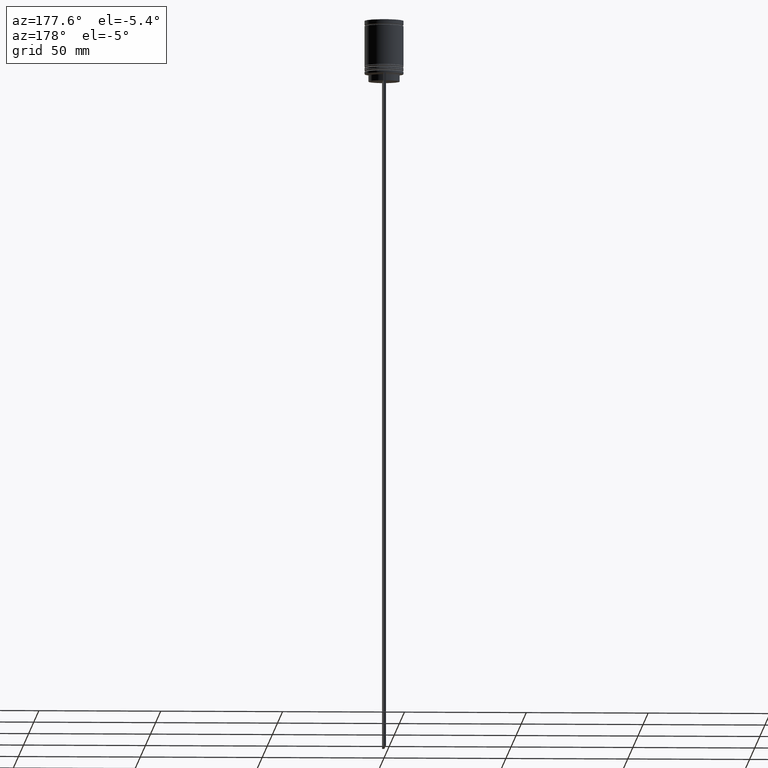
[diagram: clean part render]
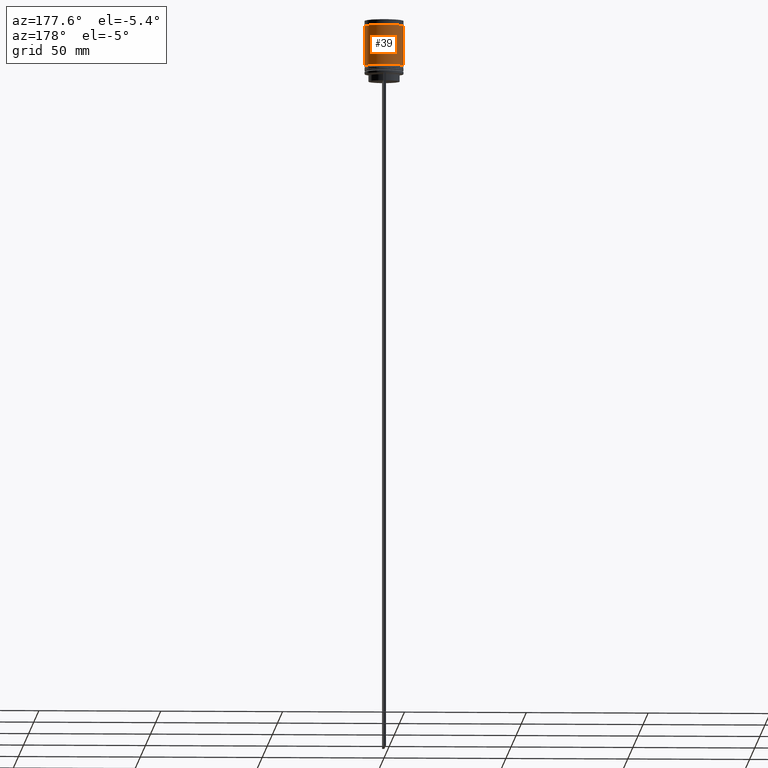
[diagram: same view with one face highlighted and labeled with its STEP entity id]
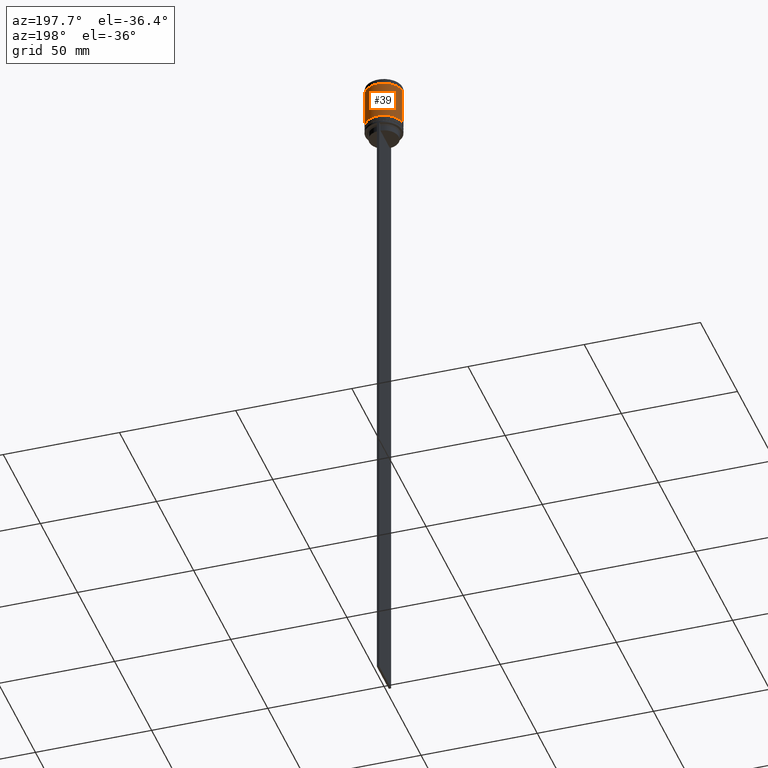
[diagram: same view with one face highlighted and labeled with its STEP entity id]
A machine part, auxiliary view. The second image highlights one B-rep face of the part: STEP entity #39.
A second angle (auxiliary view) of the same face is appended — the face is thin or edge-on in the first view.
In plain terms, the highlighted cylindrical surface (edge-blend (fillet) strip) has radius 8 mm, axis along (-0, -0, 1).
Its self-contained STEP definition (entity closure, byte-faithful):
#39 = ADVANCED_FACE ( 'NONE', ( #237 ), #1844, .T. ) ;
#41 = CARTESIAN_POINT ( 'NONE',  ( 8.000000000000001776, 0.000000000000000000, -18.50000000000000000 ) ) ;
#59 = LINE ( 'NONE', #540, #614 ) ;
#71 = CARTESIAN_POINT ( 'NONE',  ( 0.000000000000000000, 0.000000000000000000, 0.000000000000000000 ) ) ;
#104 = VERTEX_POINT ( 'NONE', #1899 ) ;
#109 = AXIS2_PLACEMENT_3D ( 'NONE', #71, #526, #1367 ) ;
#203 = VERTEX_POINT ( 'NONE', #938 ) ;
#230 = EDGE_CURVE ( 'NONE', #1109, #203, #578, .T. ) ;
#237 = FACE_OUTER_BOUND ( 'NONE', #1807, .T. ) ;
#526 = DIRECTION ( 'NONE',  ( -0.000000000000000000, -0.000000000000000000, 1.000000000000000000 ) ) ;
#540 = CARTESIAN_POINT ( 'NONE',  ( -8.000000000000000000, 9.797174393178825657E-16, 0.000000000000000000 ) ) ;
#570 = DIRECTION ( 'NONE',  ( -0.000000000000000000, -0.000000000000000000, 1.000000000000000000 ) ) ;
#578 = CIRCLE ( 'NONE', #1455, 7.999999999999996447 ) ;
#587 = CARTESIAN_POINT ( 'NONE',  ( 0.000000000000000000, 0.000000000000000000, -18.50000000000000000 ) ) ;
#614 = VECTOR ( 'NONE', #1514, 1000.000000000000000 ) ;
#629 = DIRECTION ( 'NONE',  ( -0.000000000000000000, -0.000000000000000000, 1.000000000000000000 ) ) ;
#753 = CARTESIAN_POINT ( 'NONE',  ( 7.999999999999996447, 0.000000000000000000, -2.199999999999995293 ) ) ;
#758 = AXIS2_PLACEMENT_3D ( 'NONE', #587, #1217, #937 ) ;
#797 = ORIENTED_EDGE ( 'NONE', *, *, #907, .T. ) ;
#907 = EDGE_CURVE ( 'NONE', #104, #203, #59, .T. ) ;
#937 = DIRECTION ( 'NONE',  ( 1.000000000000000000, 0.000000000000000000, 0.000000000000000000 ) ) ;
#938 = CARTESIAN_POINT ( 'NONE',  ( -7.999999999999996447, 9.797174393178823685E-16, -2.199999999999995293 ) ) ;
#964 = ORIENTED_EDGE ( 'NONE', *, *, #230, .F. ) ;
#1058 = CIRCLE ( 'NONE', #758, 8.000000000000001776 ) ;
#1109 = VERTEX_POINT ( 'NONE', #753 ) ;
#1217 = DIRECTION ( 'NONE',  ( -0.000000000000000000, -0.000000000000000000, 1.000000000000000000 ) ) ;
#1258 = VECTOR ( 'NONE', #570, 1000.000000000000000 ) ;
#1309 = EDGE_CURVE ( 'NONE', #1710, #1109, #1535, .T. ) ;
#1367 = DIRECTION ( 'NONE',  ( 1.000000000000000000, 0.000000000000000000, 0.000000000000000000 ) ) ;
#1418 = CARTESIAN_POINT ( 'NONE',  ( 0.000000000000000000, 0.000000000000000000, -2.199999999999995293 ) ) ;
#1455 = AXIS2_PLACEMENT_3D ( 'NONE', #1418, #629, #1607 ) ;
#1514 = DIRECTION ( 'NONE',  ( -0.000000000000000000, -0.000000000000000000, 1.000000000000000000 ) ) ;
#1535 = LINE ( 'NONE', #1987, #1258 ) ;
#1598 = ORIENTED_EDGE ( 'NONE', *, *, #1309, .F. ) ;
#1607 = DIRECTION ( 'NONE',  ( 1.000000000000000000, 0.000000000000000000, 0.000000000000000000 ) ) ;
#1710 = VERTEX_POINT ( 'NONE', #41 ) ;
#1781 = ORIENTED_EDGE ( 'NONE', *, *, #1840, .T. ) ;
#1807 = EDGE_LOOP ( 'NONE', ( #1781, #797, #964, #1598 ) ) ;
#1840 = EDGE_CURVE ( 'NONE', #1710, #104, #1058, .T. ) ;
#1844 = CYLINDRICAL_SURFACE ( 'NONE', #109, 8.000000000000000000 ) ;
#1899 = CARTESIAN_POINT ( 'NONE',  ( -8.000000000000001776, 9.797174393178827630E-16, -18.50000000000000000 ) ) ;
#1987 = CARTESIAN_POINT ( 'NONE',  ( 8.000000000000000000, 0.000000000000000000, 0.000000000000000000 ) ) ;